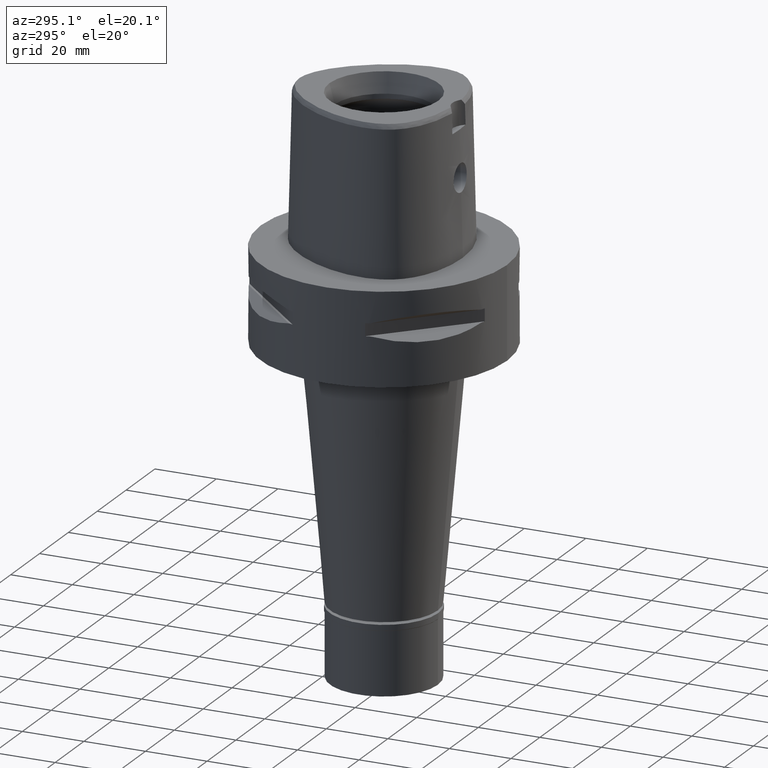
[diagram: clean part render]
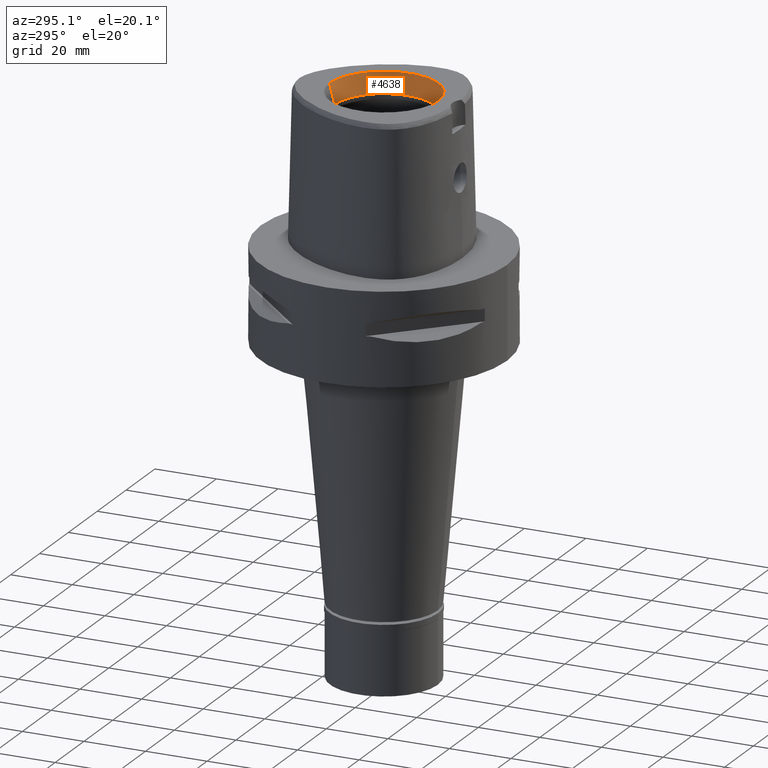
[diagram: same view with one face highlighted and labeled with its STEP entity id]
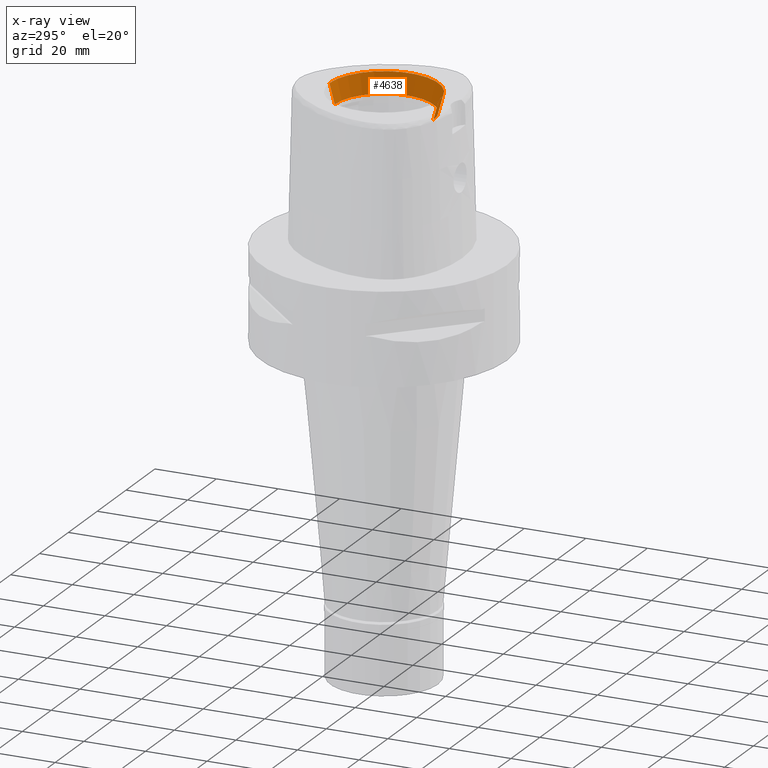
[diagram: x-ray of the same camera — body ghosted, the highlighted face saturated]
A machine part, auxiliary view. The second image highlights one B-rep face of the part: STEP entity #4638.
The next image is the same camera in x-ray: the body ghosted, the highlighted face saturated — about 0% of this face is hidden behind the body in this view.
In plain terms, the highlighted conical surface has half-angle 15 deg.
Its self-contained STEP definition (entity closure, byte-faithful):
#532 = CARTESIAN_POINT ( 'NONE',  ( 0.0000000000000000000, 16.00000000000000000, 41.60000000000000142 ) ) ;
#567 = VERTEX_POINT ( 'NONE', #1757 ) ;
#680 = LINE ( 'NONE', #1473, #2162 ) ;
#691 = CIRCLE ( 'NONE', #1618, 16.00000000000000000 ) ;
#797 = VERTEX_POINT ( 'NONE', #1077 ) ;
#1077 = CARTESIAN_POINT ( 'NONE',  ( 0.0000000000000000000, 17.71487483155999954, 48.00000000000000000 ) ) ;
#1094 = DIRECTION ( 'NONE',  ( 0.0000000000000000000, 0.0000000000000000000, 1.000000000000000000 ) ) ;
#1201 = EDGE_CURVE ( 'NONE', #567, #797, #4405, .T. ) ;
#1268 = CARTESIAN_POINT ( 'NONE',  ( 0.0000000000000000000, -16.00000000000000000, 41.60000000000000142 ) ) ;
#1473 = CARTESIAN_POINT ( 'NONE',  ( 0.0000000000000000000, -16.00000000000000000, 41.60000000000000142 ) ) ;
#1618 = AXIS2_PLACEMENT_3D ( 'NONE', #1898, #4204, #3432 ) ;
#1743 = AXIS2_PLACEMENT_3D ( 'NONE', #2195, #1094, #2652 ) ;
#1757 = CARTESIAN_POINT ( 'NONE',  ( 0.0000000000000000000, 16.00000000000000000, 41.60000000000000142 ) ) ;
#1781 = DIRECTION ( 'NONE',  ( 0.0000000000000000000, 0.0000000000000000000, 1.000000000000000000 ) ) ;
#1831 = AXIS2_PLACEMENT_3D ( 'NONE', #2204, #1781, #3366 ) ;
#1854 = CIRCLE ( 'NONE', #1743, 17.71487483155999954 ) ;
#1898 = CARTESIAN_POINT ( 'NONE',  ( 0.0000000000000000000, 0.0000000000000000000, 41.60000000000000142 ) ) ;
#2099 = EDGE_CURVE ( 'NONE', #4666, #567, #691, .T. ) ;
#2151 = FACE_OUTER_BOUND ( 'NONE', #4344, .T. ) ;
#2162 = VECTOR ( 'NONE', #3074, 1000.000000000000000 ) ;
#2195 = CARTESIAN_POINT ( 'NONE',  ( 0.0000000000000000000, 0.0000000000000000000, 48.00000000000000000 ) ) ;
#2204 = CARTESIAN_POINT ( 'NONE',  ( 0.0000000000000000000, 0.0000000000000000000, 44.79999999999999716 ) ) ;
#2289 = ORIENTED_EDGE ( 'NONE', *, *, #2099, .F. ) ;
#2497 = CARTESIAN_POINT ( 'NONE',  ( 0.0000000000000000000, -17.71487483155999954, 48.00000000000000000 ) ) ;
#2652 = DIRECTION ( 'NONE',  ( 0.0000000000000000000, -1.000000000000000000, 0.0000000000000000000 ) ) ;
#2658 = ORIENTED_EDGE ( 'NONE', *, *, #1201, .F. ) ;
#2681 = VERTEX_POINT ( 'NONE', #2497 ) ;
#3074 = DIRECTION ( 'NONE',  ( 0.0000000000000000000, -0.2588190451025869088, 0.9659258262890505486 ) ) ;
#3245 = ORIENTED_EDGE ( 'NONE', *, *, #3638, .T. ) ;
#3366 = DIRECTION ( 'NONE',  ( 0.0000000000000000000, 1.000000000000000000, 0.0000000000000000000 ) ) ;
#3388 = EDGE_CURVE ( 'NONE', #4666, #2681, #680, .T. ) ;
#3432 = DIRECTION ( 'NONE',  ( 0.0000000000000000000, -1.000000000000000000, 0.0000000000000000000 ) ) ;
#3584 = CONICAL_SURFACE ( 'NONE', #1831, 16.85743741578000154, 0.2617993877991000029 ) ;
#3638 = EDGE_CURVE ( 'NONE', #2681, #797, #1854, .T. ) ;
#4116 = DIRECTION ( 'NONE',  ( 0.0000000000000000000, 0.2588190451025869088, 0.9659258262890505486 ) ) ;
#4204 = DIRECTION ( 'NONE',  ( 0.0000000000000000000, 0.0000000000000000000, 1.000000000000000000 ) ) ;
#4344 = EDGE_LOOP ( 'NONE', ( #2658, #2289, #5146, #3245 ) ) ;
#4405 = LINE ( 'NONE', #532, #4527 ) ;
#4527 = VECTOR ( 'NONE', #4116, 1000.000000000000000 ) ;
#4638 = ADVANCED_FACE ( 'NONE', ( #2151 ), #3584, .F. ) ;
#4666 = VERTEX_POINT ( 'NONE', #1268 ) ;
#5146 = ORIENTED_EDGE ( 'NONE', *, *, #3388, .T. ) ;